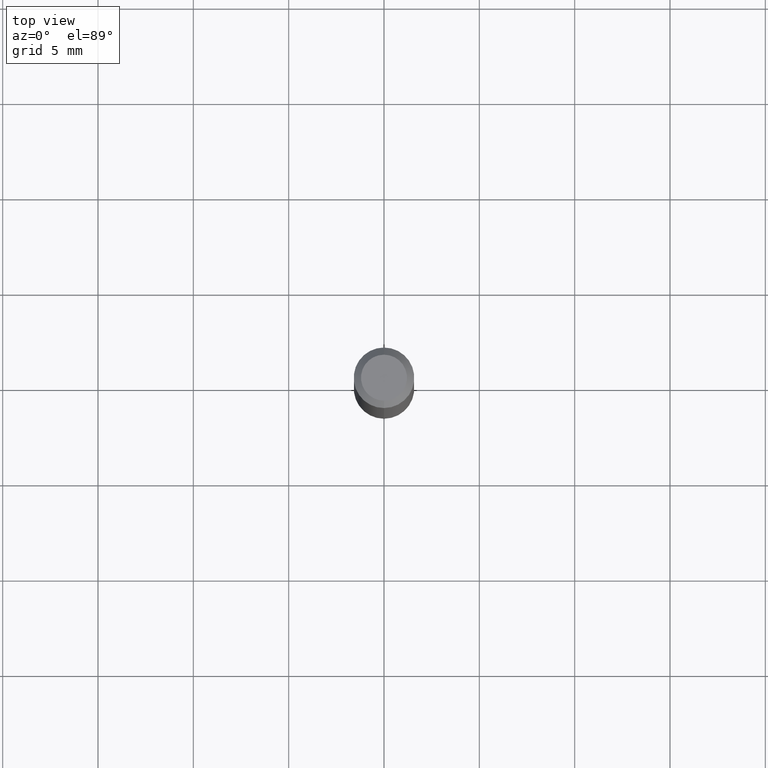
[diagram: clean part render]
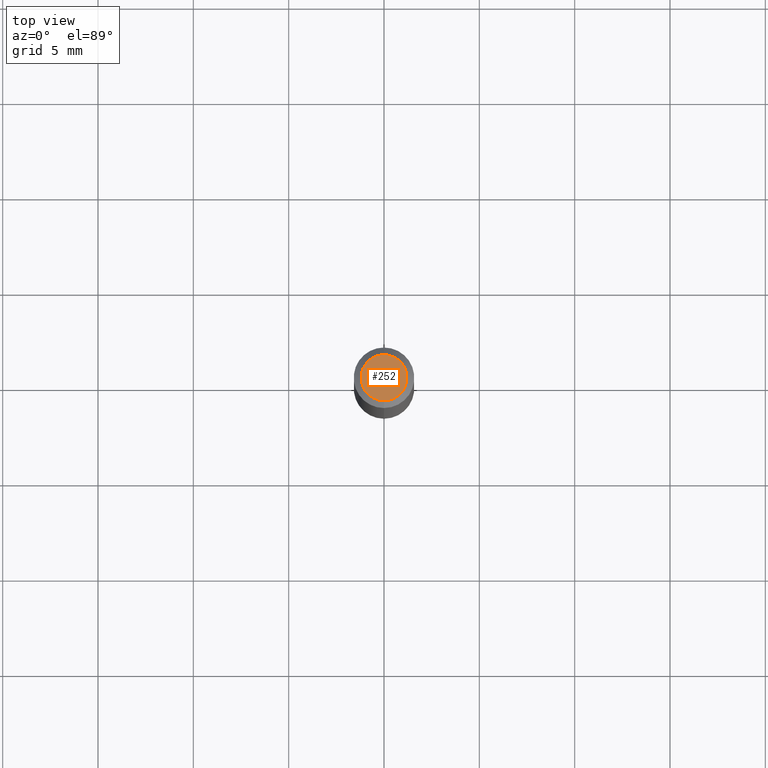
[diagram: same view with one face highlighted and labeled with its STEP entity id]
A machine part, top view. The second image highlights one B-rep face of the part: STEP entity #252.
In plain terms, the highlighted planar face has unit normal (0, -0, -1).
Its self-contained STEP definition (entity closure, byte-faithful):
#51 = DIRECTION ( 'NONE',  ( -6.982962677686266711E-15, -1.000000000000000000, 3.491490095348556460E-15 ) ) ;
#88 = AXIS2_PLACEMENT_3D ( 'NONE', #309, #455, #389 ) ;
#145 = CARTESIAN_POINT ( 'NONE',  ( -3.773273898774340269E-16, -0.04749999999999999362, 1.569858758712323224E-16 ) ) ;
#178 = ORIENTED_EDGE ( 'NONE', *, *, #385, .T. ) ;
#189 = EDGE_CURVE ( 'NONE', #390, #353, #363, .T. ) ;
#224 = DIRECTION ( 'NONE',  ( -2.445462691550089435E-29, 3.491490095348556460E-15, 1.000000000000000000 ) ) ;
#240 = CIRCLE ( 'NONE', #88, 0.04749999999999999362 ) ;
#252 = ADVANCED_FACE ( 'NONE', ( #336 ), #494, .F. ) ;
#258 = AXIS2_PLACEMENT_3D ( 'NONE', #374, #381, #301 ) ;
#262 = CARTESIAN_POINT ( 'NONE',  ( 2.166656384593696533E-46, -3.093426586703523285E-32, -8.859903657824081740E-18 ) ) ;
#283 = ORIENTED_EDGE ( 'NONE', *, *, #189, .T. ) ;
#301 = DIRECTION ( 'NONE',  ( 6.982962677686265922E-15, 1.000000000000000000, -3.491490095348556460E-15 ) ) ;
#309 = CARTESIAN_POINT ( 'NONE',  ( 2.166656384593696533E-46, -3.093426586703523285E-32, -8.859903657824081740E-18 ) ) ;
#336 = FACE_OUTER_BOUND ( 'NONE', #463, .T. ) ;
#340 = AXIS2_PLACEMENT_3D ( 'NONE', #262, #224, #51 ) ;
#353 = VERTEX_POINT ( 'NONE', #462 ) ;
#363 = CIRCLE ( 'NONE', #340, 0.04749999999999999362 ) ;
#374 = CARTESIAN_POINT ( 'NONE',  ( 3.316907271900976096E-16, 0.04749999999999999362, -1.702757313579684658E-16 ) ) ;
#381 = DIRECTION ( 'NONE',  ( 2.445462691550089155E-29, -3.491490095348556460E-15, -1.000000000000000000 ) ) ;
#385 = EDGE_CURVE ( 'NONE', #353, #390, #240, .T. ) ;
#389 = DIRECTION ( 'NONE',  ( -6.982962677686266711E-15, -1.000000000000000000, 3.491490095348556460E-15 ) ) ;
#390 = VERTEX_POINT ( 'NONE', #145 ) ;
#455 = DIRECTION ( 'NONE',  ( -2.445462691550089435E-29, 3.491490095348556460E-15, 1.000000000000000000 ) ) ;
#462 = CARTESIAN_POINT ( 'NONE',  ( 3.840629472727447874E-16, 0.04749999999999999362, -1.747056831868805136E-16 ) ) ;
#463 = EDGE_LOOP ( 'NONE', ( #178, #283 ) ) ;
#494 = PLANE ( 'NONE',  #258 ) ;